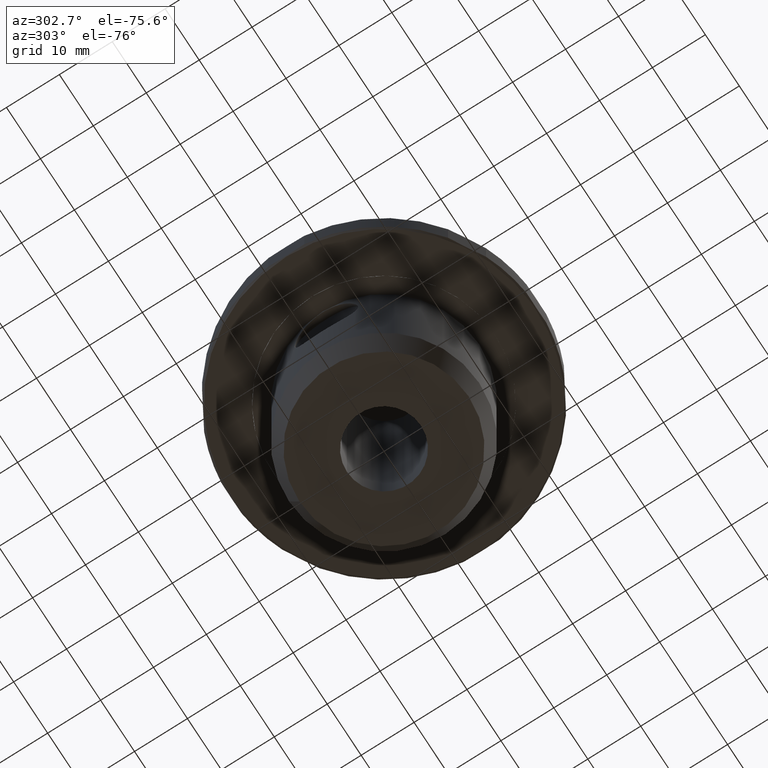
[diagram: clean part render]
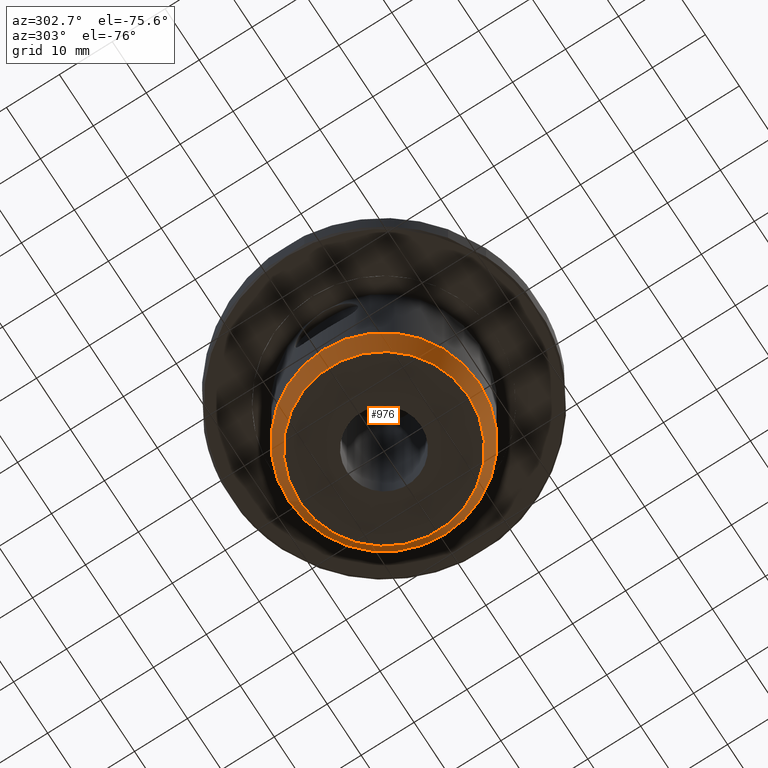
[diagram: same view with one face highlighted and labeled with its STEP entity id]
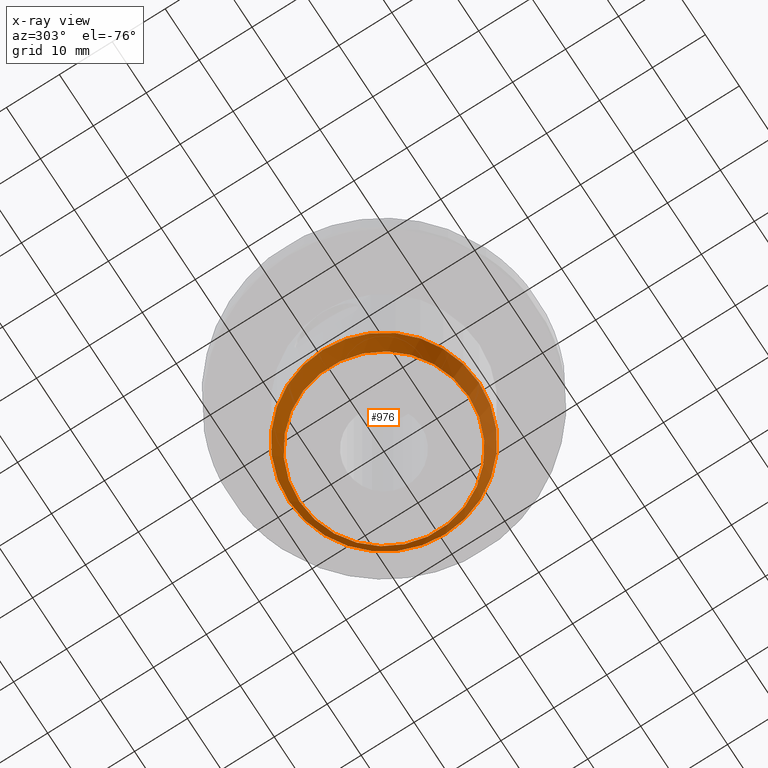
[diagram: x-ray of the same camera — body ghosted, the highlighted face saturated]
A machine part, auxiliary view. The second image highlights one B-rep face of the part: STEP entity #976.
The next image is the same camera in x-ray: the body ghosted, the highlighted face saturated — about 0% of this face is hidden behind the body in this view.
In plain terms, the highlighted conical surface has half-angle 25 deg.
Its self-contained STEP definition (entity closure, byte-faithful):
#110=CONICAL_SURFACE('',#1109,16.,0.436332312998585);
#117=CIRCLE('',#1000,18.);
#168=CIRCLE('',#1110,16.);
#412=ORIENTED_EDGE('',*,*,#429,.T.);
#413=ORIENTED_EDGE('',*,*,#549,.F.);
#429=EDGE_CURVE('',#556,#556,#117,.T.);
#549=EDGE_CURVE('',#642,#642,#168,.T.);
#556=VERTEX_POINT('',#1428);
#642=VERTEX_POINT('',#1837);
#774=EDGE_LOOP('',(#412));
#775=EDGE_LOOP('',(#413));
#874=FACE_BOUND('',#774,.T.);
#875=FACE_BOUND('',#775,.T.);
#976=ADVANCED_FACE('',(#874,#875),#110,.T.);
#1000=AXIS2_PLACEMENT_3D('',#1427,#1129,#1130);
#1109=AXIS2_PLACEMENT_3D('',#1835,#1375,#1376);
#1110=AXIS2_PLACEMENT_3D('',#1836,#1377,#1378);
#1129=DIRECTION('',(0.,0.,-1.));
#1130=DIRECTION('',(0.,1.,0.));
#1375=DIRECTION('',(0.,0.,1.));
#1376=DIRECTION('',(0.,-1.,0.));
#1377=DIRECTION('',(0.,0.,-1.));
#1378=DIRECTION('',(0.,1.,0.));
#1427=CARTESIAN_POINT('',(0.,0.,-31.7109861589809));
#1428=CARTESIAN_POINT('',(0.,18.,-31.7109861589809));
#1835=CARTESIAN_POINT('',(0.,0.,-36.));
#1836=CARTESIAN_POINT('',(0.,0.,-36.));
#1837=CARTESIAN_POINT('',(0.,16.,-36.));